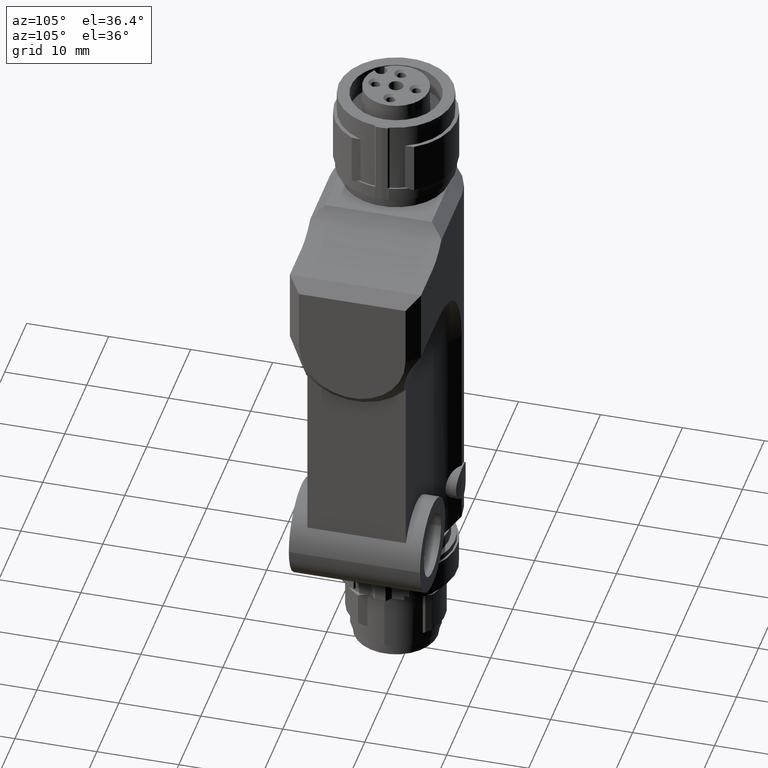
[diagram: clean part render]
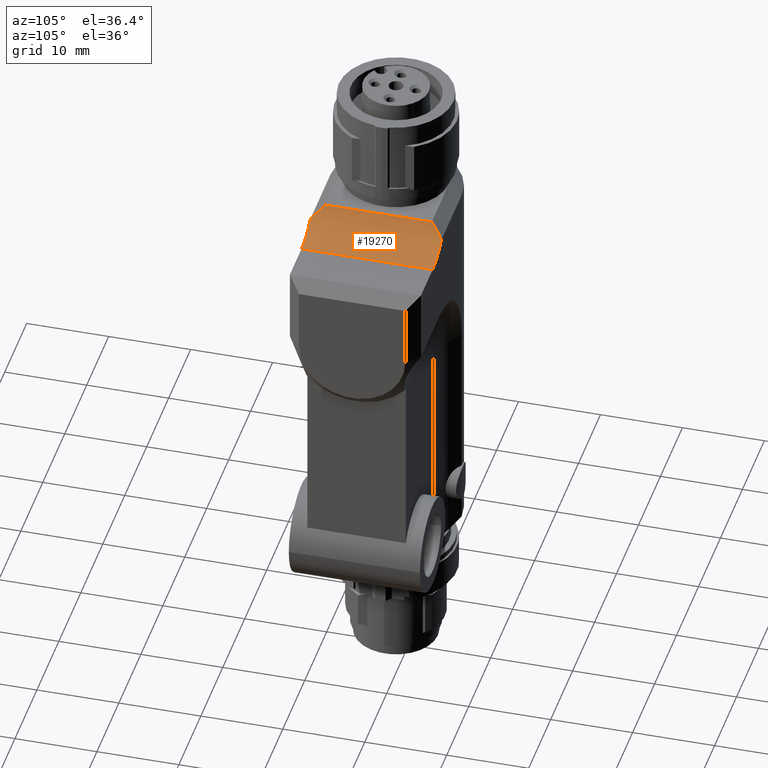
[diagram: same view with one face highlighted and labeled with its STEP entity id]
A machine part, auxiliary view. The second image highlights one B-rep face of the part: STEP entity #19270.
In plain terms, the highlighted cylindrical surface (partial cylindrical patch) has radius 6 mm, axis along (0, 1, 0).
Its self-contained STEP definition (entity closure, byte-faithful):
#15450=CARTESIAN_POINT('',(8.,8.00000000000002,50.));
#15460=DIRECTION('',(-1.,0.,0.));
#15470=VECTOR('',#15460,1.);
#15480=LINE('',#15450,#15470);
#15490=CARTESIAN_POINT('',(6.50000000000006,8.00000000000002,50.));
#15500=VERTEX_POINT('',#15490);
#15510=CARTESIAN_POINT('',(-6.50000000000007,8.00000000000002,50.));
#15520=VERTEX_POINT('',#15510);
#15530=EDGE_CURVE('',#15500,#15520,#15480,.T.);
#18600=CARTESIAN_POINT('',(8.,13.1961524227066,47.));
#18610=DIRECTION('',(-1.,0.,0.));
#18620=VECTOR('',#18610,1.);
#18630=LINE('',#18600,#18620);
#18640=CARTESIAN_POINT('',(8.,13.1961524227066,47.));
#18650=VERTEX_POINT('',#18640);
#18660=CARTESIAN_POINT('',(-7.99999999999999,13.1961524227066,47.));
#18670=VERTEX_POINT('',#18660);
#18680=EDGE_CURVE('',#18650,#18670,#18630,.T.);
#18860=CARTESIAN_POINT('',(8.,13.1961524227066,53.));
#18870=DIRECTION('',(-1.,0.,0.));
#18880=DIRECTION('',(0.,1.,0.));
#18890=AXIS2_PLACEMENT_3D('',#18860,#18870,#18880);
#18900=CYLINDRICAL_SURFACE('',#18890,5.99999999999996);
#18910=ORIENTED_EDGE('',*,*,#15530,.F.);
#18920=CARTESIAN_POINT('',(-3.50000000000021,13.1961524227066,53.));
#18930=DIRECTION('',(-0.707106781186563,0.,0.707106781186532));
#18940=DIRECTION('',(-0.707106781186532,0.,-0.707106781186563));
#18950=AXIS2_PLACEMENT_3D('',#18920,#18930,#18940);
#18960=ELLIPSE('',#18950,8.48528137423833,5.99999999999997);
#18970=CARTESIAN_POINT('',(-8.,9.22752545610978,48.5));
#18980=VERTEX_POINT('',#18970);
#18990=EDGE_CURVE('',#18980,#15520,#18960,.T.);
#19000=ORIENTED_EDGE('',*,*,#18990,.T.);
#19010=CARTESIAN_POINT('',(-8.,13.1961524227066,53.));
#19020=DIRECTION('',(-1.,0.,0.));
#19030=DIRECTION('',(0.,1.,0.));
#19040=AXIS2_PLACEMENT_3D('',#19010,#19020,#19030);
#19050=CIRCLE('',#19040,5.99999999999996);
#19060=EDGE_CURVE('',#18670,#18980,#19050,.T.);
#19070=ORIENTED_EDGE('',*,*,#19060,.T.);
#19080=ORIENTED_EDGE('',*,*,#18680,.T.);
#19090=CARTESIAN_POINT('',(8.,13.1961524227066,53.));
#19100=DIRECTION('',(-1.,0.,0.));
#19110=DIRECTION('',(0.,1.,0.));
#19120=AXIS2_PLACEMENT_3D('',#19090,#19100,#19110);
#19130=CIRCLE('',#19120,5.99999999999996);
#19140=CARTESIAN_POINT('',(8.,9.2275254561098,48.5));
#19150=VERTEX_POINT('',#19140);
#19160=EDGE_CURVE('',#18650,#19150,#19130,.T.);
#19170=ORIENTED_EDGE('',*,*,#19160,.F.);
#19180=CARTESIAN_POINT('',(3.5000000000002,13.1961524227066,53.));
#19190=DIRECTION('',(0.707106781186564,0.,0.707106781186531));
#19200=DIRECTION('',(-0.707106781186531,0.,0.707106781186564));
#19210=AXIS2_PLACEMENT_3D('',#19180,#19190,#19200);
#19220=ELLIPSE('',#19210,8.48528137423833,5.99999999999996);
#19230=EDGE_CURVE('',#15500,#19150,#19220,.T.);
#19240=ORIENTED_EDGE('',*,*,#19230,.T.);
#19250=EDGE_LOOP('',(#19240,#19170,#19080,#19070,#19000,#18910));
#19260=FACE_OUTER_BOUND('',#19250,.T.);
#19270=ADVANCED_FACE('',(#19260),#18900,.F.);